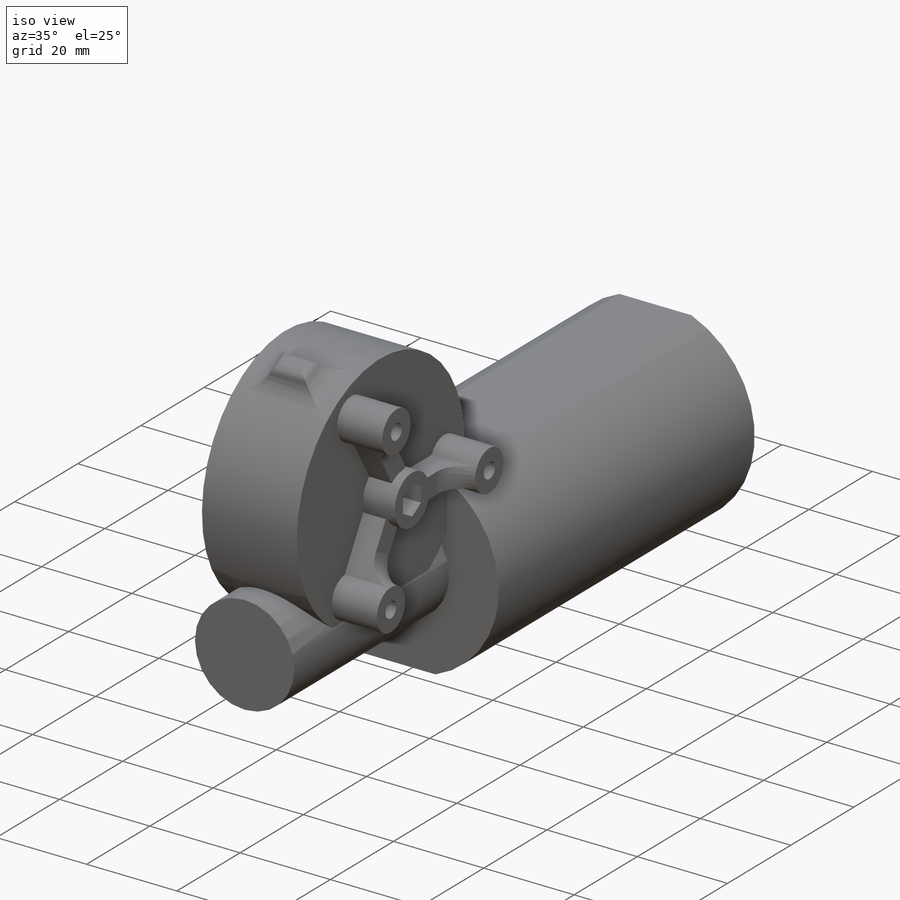
[diagram: iso view]
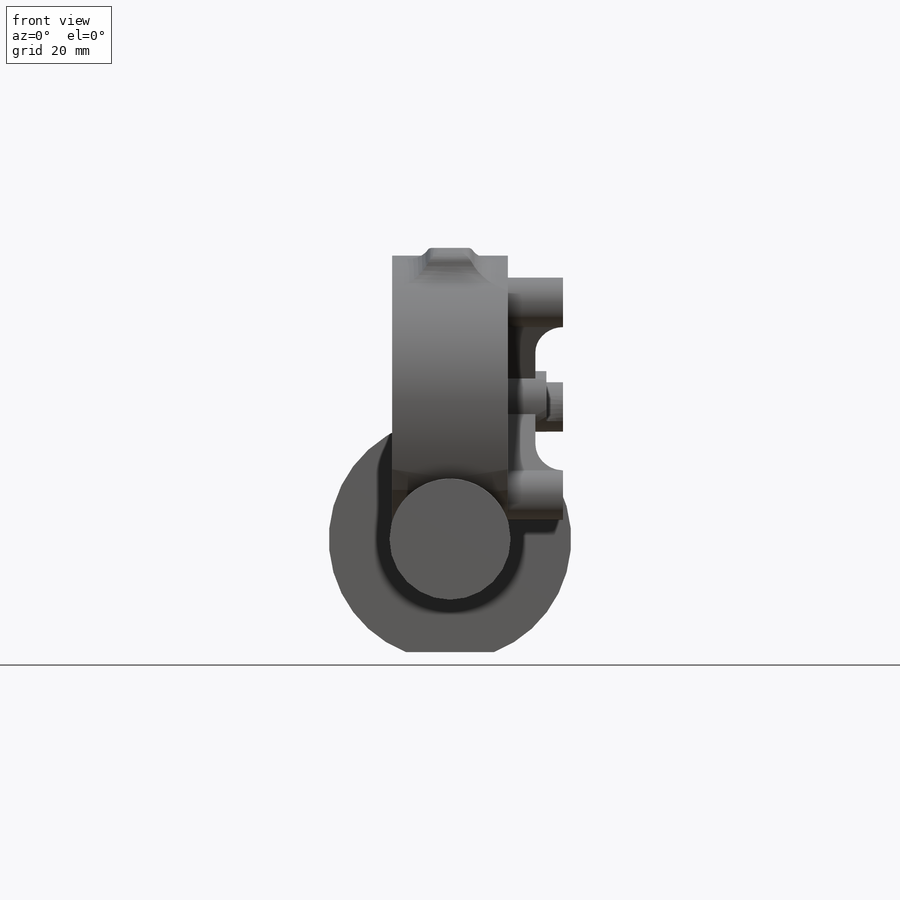
[diagram: front view]
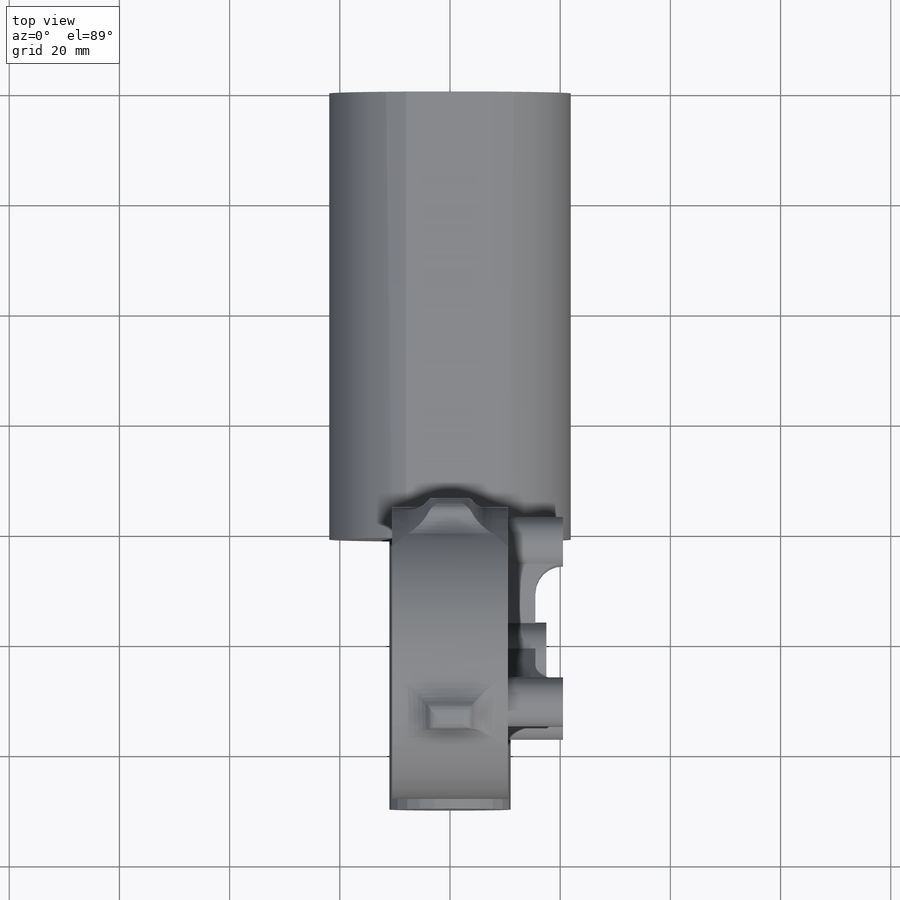
[diagram: top view]
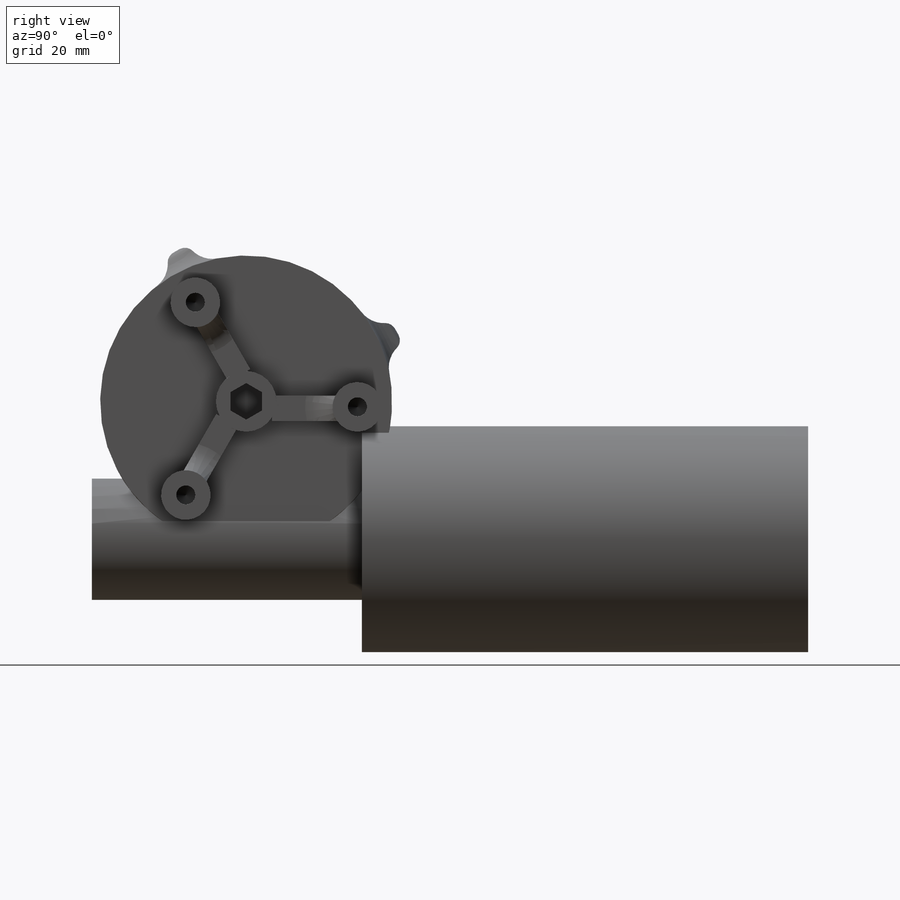
[diagram: right view]
SOLIDWORKS PART (.sldprt)
format: sldprt  version: not decoded by parser v0  size: 768,512 bytes
history: native  units: mm
features: fillet x16, sketch x12, extrude x8, thread x4, plane x3, cut_extrude x2, pattern_circular x2, material x1, hole x1 (+9 scaffold rows collapsed)
feature tree (58):
  scaffold x9  (default folders/planes/origin — collapsed)
  material  "Matériau <non spécifié>"
  plane  "Plan de face"
  plane  "Plan de dessus"
  plane  "Plan de droite"
  sketch  "Esquisse1"  dims[D1=44.0mm]
  extrude  "Boss.-Extru.1"  Depth=81mm
  sketch  "Esquisse2"  dims[D1=22.0mm]
  extrude  "Boss.-Extru.2"  Depth=49mm
  sketch  "Esquisse3D2"  dims[c1.D1=53.0mm c1.D2=53.0mm c1.D3=53.0mm c2.D2=25.0mm c2.D3=21.0mm]
  sketch  "Esquisse3"  dims[D1=20.5mm D2=20.5mm]
  cut_extrude  "Enlèv. mat.-Extru.1"  [1 undecoded]
  extrude  "Boss.-Extru.3"  Depth=10.5mm
  sketch  "Esquisse4"  dims[c1.D1=~24.717071mm c1.D2=11.0mm c2.D1=0.0mm]
  extrude  "Boss.-Extru.4"  Depth=7mm
  sketch  "Esquisse5"  dims[D1=6.0mm]
  cut_extrude  "Enlèv. mat.-Extru.2"  Depth=10mm
  sketch  "Esquisse6"  dims[D1=9.0mm]
  extrude  "Boss.-Extru.5"  Depth=10mm
  sketch  "Esquisse7"  dims[D1=4.0mm]
  hole  "Trou taraudé #8-361"  [1 undecoded]
  sketch  "Esquisse10"
  thread  "Filetage de perçage1"  Diameter=8.33mm  [1 undecoded]
  sketch  "Esquisse9"  dims[hole-wizard template sketch: 46 standard entries collapsed; hole parameters kept: c15.Diamètre du trou pour taraudage=3.4544mm c15.Profondeur du trou pour taraudage=11.86mm c15.D3=~14.816244mm c15.Angle de pointe=118.0deg]
  sketch  "Esquisse12"
  extrude  "Boss.-Extru.6"  Depth=5mm
  fillet  "Congé4"  Radius=5mm
  pattern_circular  "Répétition circulaire1"  Count=3 Angle=120deg
  thread  "Esquisse3D7"  Diameter=35mm  [1 undecoded]
  thread  "Esquisse3D8"  Diameter=135mm  [1 undecoded]
  thread  "Esquisse3D10"  Diameter=30mm  [1 undecoded]
  extrude  "Boss.-Extru.8"  Depth=10mm
  fillet  "Congé5"  Radius=5mm
  fillet  "Congé7"  Radius=5mm
  fillet  "Congé8"  Radius=3mm
  fillet  "Congé9"  Radius=3mm
  fillet  "Congé10"  Radius=3mm
  pattern_circular  "Répétition circulaire5"  Count=2 Angle=120deg
  sketch  "Esquisse13"  dims[D1=6.0mm D2=6.0mm D3=6.0mm D4=6.0mm]
  extrude  "Boss.-Extru.9"  Depth=15mm
  fillet  "Congé11"  Radius=2.5mm
  fillet  "Congé12"  Radius=3mm
  fillet  "Congé13"  Radius=2mm
  fillet  "Congé14"  Radius=2mm
  fillet  "Congé15"  Radius=2mm
  fillet  "Congé16"  Radius=2mm
  fillet  "Congé17"  Radius=3mm
  fillet  "Congé18"  Radius=2mm
  fillet  "Congé19"  Radius=2mm
  fillet  "Congé20"  Radius=1.2mm
decode coverage: 41 of 45 modeling features carry decoded parameters
note: ~ marks probable driven/reference dimensions
note: 6 parameter values undecoded
note: suppression state not decoded; provenance and decode notes live in map.json
